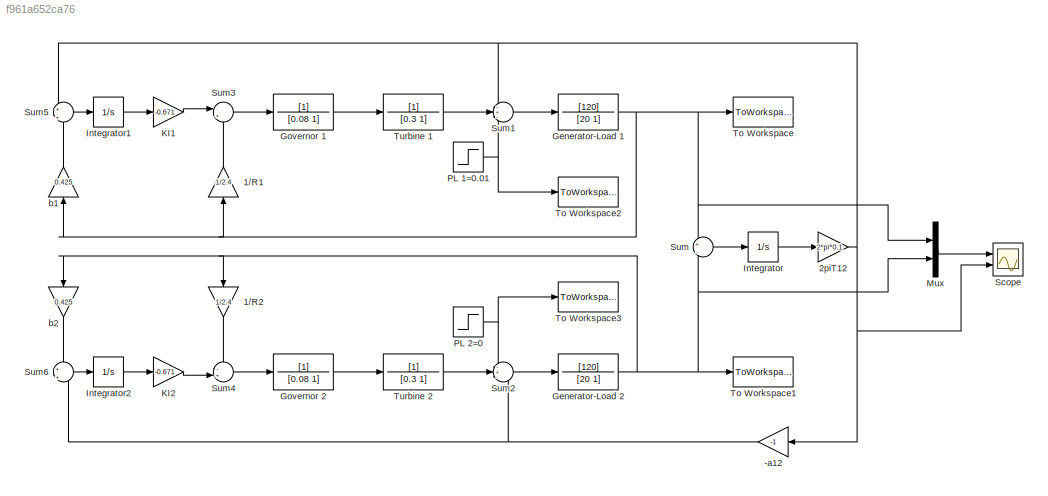
MODEL slx_f961a652ca76
KIND model
BLOCK [Gain] -a12
  Gain = -1
  OutDataTypeStr = Inherit: Inherit via internal rule
  ParamDataTypeStr = Inherit: Inherit via internal rule
  SaturateOnIntegerOverflow = off
BLOCK [Gain] 1//R1
  Gain = 1/2.4
  OutDataTypeStr = Inherit: Inherit via internal rule
  ParamDataTypeStr = Inherit: Inherit via internal rule
  SaturateOnIntegerOverflow = off
BLOCK [Gain] 1//R2
  Gain = 1/2.4
  OutDataTypeStr = Inherit: Inherit via internal rule
  ParamDataTypeStr = Inherit: Inherit via internal rule
  SaturateOnIntegerOverflow = off
BLOCK [Gain] 2piT12
  Gain = 2*pi*0.1
  OutDataTypeStr = Inherit: Inherit via internal rule
  ParamDataTypeStr = Inherit: Inherit via internal rule
  SaturateOnIntegerOverflow = off
BLOCK [TransferFcn] Generator-Load 1
  Denominator = [20 1]
  Numerator = [120]
BLOCK [TransferFcn] Generator-Load 2
  Denominator = [20 1]
  Numerator = [120]
BLOCK [TransferFcn] Governor 1
  Denominator = [0.08 1]
BLOCK [TransferFcn] Governor 2
  Denominator = [0.08 1]
BLOCK [Integrator] Integrator
  Ports = [1, 1]
BLOCK [Integrator] Integrator1
  Ports = [1, 1]
BLOCK [Integrator] Integrator2
  Ports = [1, 1]
BLOCK [Gain] KI1
  Gain = -0.671
  OutDataTypeStr = Inherit: Inherit via internal rule
  ParamDataTypeStr = Inherit: Inherit via internal rule
  SaturateOnIntegerOverflow = off
BLOCK [Gain] KI2
  Gain = -0.671
  OutDataTypeStr = Inherit: Inherit via internal rule
  ParamDataTypeStr = Inherit: Inherit via internal rule
  SaturateOnIntegerOverflow = off
BLOCK [Mux] Mux
  DisplayOption = bar
  Inputs = 2
  Ports = [2, 1]
BLOCK [Step] PL 1=0.01
  After = 0.01
  SampleTime = 0
BLOCK [Step] PL 2=0
  After = 0
  SampleTime = 0
BLOCK [Scope] Scope
  Floating = off
  NumInputPorts = 2
  Ports = [2]
  ShowLegends = off
  YMax = 5~5
  YMin = -5~-5
BLOCK [Sum] Sum
  IconShape = round
  InputSameDT = off
  Inputs = +|-
  OutDataTypeStr = Inherit: Inherit via internal rule
  Ports = [2, 1]
  SaturateOnIntegerOverflow = off
BLOCK [Sum] Sum1
  IconShape = round
  InputSameDT = off
  Inputs = -+-
  OutDataTypeStr = Inherit: Inherit via internal rule
  Ports = [3, 1]
  SaturateOnIntegerOverflow = off
BLOCK [Sum] Sum2
  IconShape = round
  InputSameDT = off
  Inputs = -+-
  OutDataTypeStr = Inherit: Inherit via internal rule
  Ports = [3, 1]
  SaturateOnIntegerOverflow = off
BLOCK [Sum] Sum3
  IconShape = round
  InputSameDT = off
  Inputs = |+-
  OutDataTypeStr = Inherit: Inherit via internal rule
  Ports = [2, 1]
  SaturateOnIntegerOverflow = off
BLOCK [Sum] Sum4
  IconShape = round
  InputSameDT = off
  Inputs = -+|
  OutDataTypeStr = Inherit: Inherit via internal rule
  Ports = [2, 1]
  SaturateOnIntegerOverflow = off
BLOCK [Sum] Sum5
  IconShape = round
  InputSameDT = off
  Inputs = +|+
  OutDataTypeStr = Inherit: Inherit via internal rule
  Ports = [2, 1]
  SaturateOnIntegerOverflow = off
BLOCK [Sum] Sum6
  IconShape = round
  InputSameDT = off
  Inputs = +|+
  OutDataTypeStr = Inherit: Inherit via internal rule
  Ports = [2, 1]
  SaturateOnIntegerOverflow = off
BLOCK [ToWorkspace] To Workspace
  FixptAsFi = on
  MaxDataPoints = inf
  Ports = [1]
  SampleTime = -1
  Save2DSignal = 3-D array (concatenate along third dimension)
  SaveFormat = Timeseries
  VariableName = simout
BLOCK [ToWorkspace] To Workspace1
  FixptAsFi = on
  MaxDataPoints = inf
  Ports = [1]
  SampleTime = -1
  Save2DSignal = 3-D array (concatenate along third dimension)
  SaveFormat = Timeseries
  VariableName = simout1
BLOCK [ToWorkspace] To Workspace2
  FixptAsFi = on
  MaxDataPoints = inf
  Ports = [1]
  SampleTime = -1
  Save2DSignal = 3-D array (concatenate along third dimension)
  SaveFormat = Timeseries
  VariableName = simout2
BLOCK [ToWorkspace] To Workspace3
  FixptAsFi = on
  MaxDataPoints = inf
  Ports = [1]
  SampleTime = -1
  Save2DSignal = 3-D array (concatenate along third dimension)
  SaveFormat = Timeseries
  VariableName = simout3
BLOCK [TransferFcn] Turbine 1
  Denominator = [0.3 1]
BLOCK [TransferFcn] Turbine 2
  Denominator = [0.3 1]
BLOCK [Gain] b1
  Gain = 0.425
  OutDataTypeStr = Inherit: Inherit via internal rule
  ParamDataTypeStr = Inherit: Inherit via internal rule
  SaturateOnIntegerOverflow = off
BLOCK [Gain] b2
  Gain = 0.425
  OutDataTypeStr = Inherit: Inherit via internal rule
  ParamDataTypeStr = Inherit: Inherit via internal rule
  SaturateOnIntegerOverflow = off
NET -a12:1 -> Sum2:3, Sum6:2
LINE 1//R1:1 -> Sum3:2
LINE 1//R2:1 -> Sum4:1
NET 2piT12:1 -> -a12:1, Scope:2, Sum1:1, Sum5:1
NET Generator-Load 1:1 -> 1//R1:1, Mux:1, Sum:1, To Workspace:1, b1:1
NET Generator-Load 2:1 -> 1//R2:1, Mux:2, Sum:2, To Workspace1:1, b2:1
LINE Governor 1:1 -> Turbine 1:1
LINE Governor 2:1 -> Turbine 2:1
LINE Integrator1:1 -> KI1:1
LINE Integrator2:1 -> KI2:1
LINE Integrator:1 -> 2piT12:1
LINE KI1:1 -> Sum3:1
LINE KI2:1 -> Sum4:2
LINE Mux:1 -> Scope:1
NET PL 1=0.01:1 -> Sum1:3, To Workspace2:1
NET PL 2=0:1 -> Sum2:1, To Workspace3:1
LINE Sum1:1 -> Generator-Load 1:1
LINE Sum2:1 -> Generator-Load 2:1
LINE Sum3:1 -> Governor 1:1
LINE Sum4:1 -> Governor 2:1
LINE Sum5:1 -> Integrator1:1
LINE Sum6:1 -> Integrator2:1
LINE Sum:1 -> Integrator:1
LINE Turbine 1:1 -> Sum1:2
LINE Turbine 2:1 -> Sum2:2
LINE b1:1 -> Sum5:2
LINE b2:1 -> Sum6:1
note: NET lines group one-source signal fan-out (src -> all destinations, sorted); 1:1 wires keep LINE
